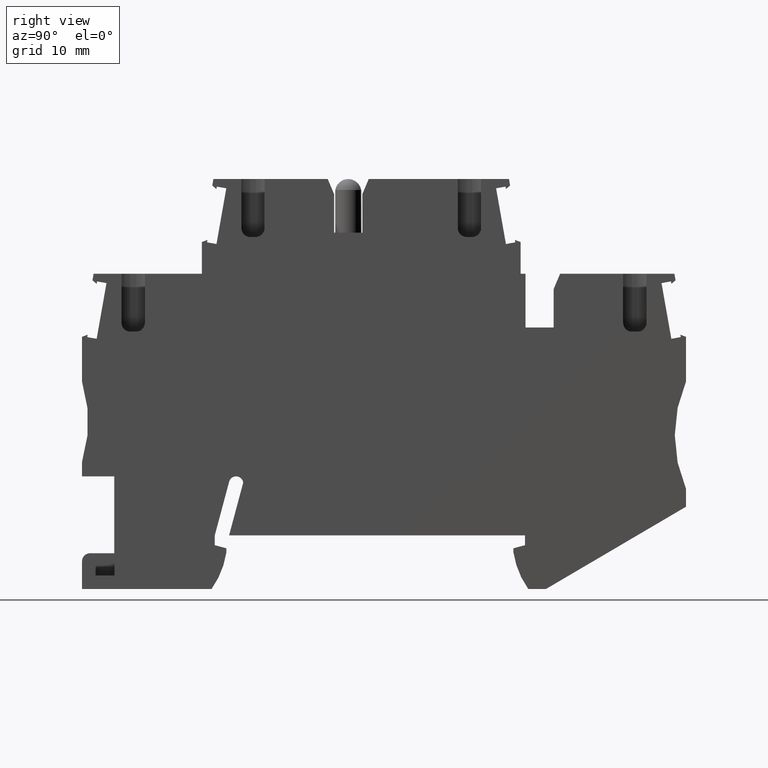
[diagram: clean part render]
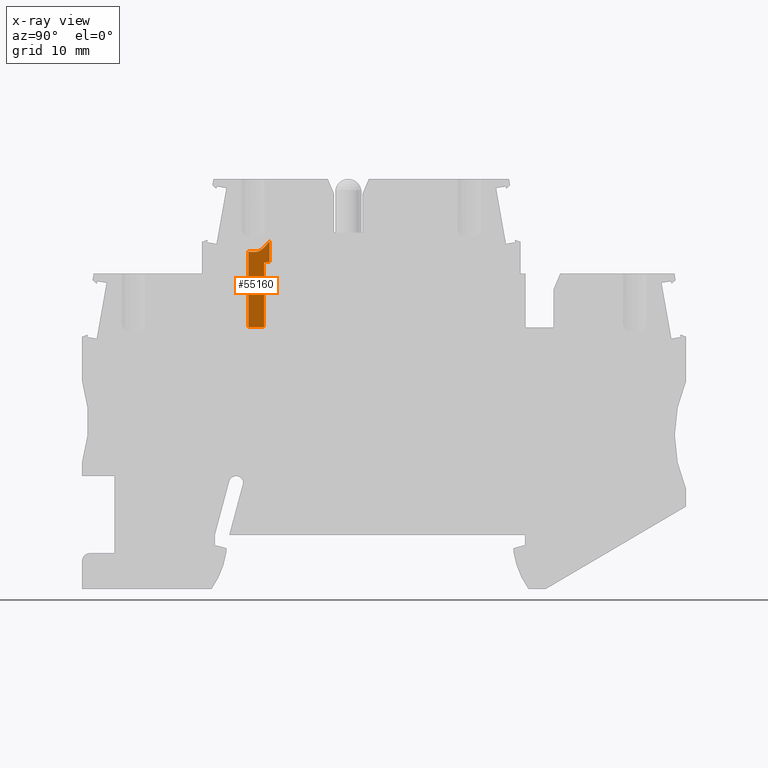
[diagram: x-ray — body ghosted, one internal face saturated and labeled with its STEP entity id]
A machine part, right view, then the same camera in x-ray: the body is ghosted and one INTERNAL B-rep face — a face not visible from any outside direction — is saturated and labeled: STEP entity #55160.
In plain terms, the highlighted planar face has unit normal (-1, 0, 0).
Its self-contained STEP definition (entity closure, byte-faithful):
#52170=CARTESIAN_POINT('',(154.743635451665,35.8467138221694,51.27));
#52180=DIRECTION('',(0.,1.,0.));
#52190=DIRECTION('',(-1.,0.,0.));
#52200=AXIS2_PLACEMENT_3D('',#52170,#52180,#52190);
#52210=CONICAL_SURFACE('',#52200,2.4,0.5235987755983);
#52910=CARTESIAN_POINT('',(154.743635451665,34.201265554979,52.72));
#52920=VERTEX_POINT('',#52910);
#52950=CARTESIAN_POINT('',(154.05289174731,33.1967138221691,52.72));
#52960=DIRECTION('',(1.15490950136632E-13,2.7755575615654E-17,-1.));
#52970=DIRECTION('',(1.,1.15504827924453E-13,1.15490950136632E-13));
#52980=AXIS2_PLACEMENT_3D('',#52950,#52960,#52970);
#52990=PLANE('',#52980);
#53000=CARTESIAN_POINT('',(156.293635451637,35.3660671728923,
52.7199999999989));
#53010=CARTESIAN_POINT('',(156.267840887076,35.3334404744596,
52.7199999999989));
#53020=CARTESIAN_POINT('',(156.241858629787,35.3009557849301,
52.7200000000002));
#53030=CARTESIAN_POINT('',(156.21566867898,35.2686388305721,
52.7200000000002));
#53040=CARTESIAN_POINT('',(156.189478723442,35.2363218703756,
52.7200000000002));
#53050=CARTESIAN_POINT('',(156.163081079205,35.2041725044098,
52.7200000000002));
#53060=CARTESIAN_POINT('',(156.13645095304,35.1722199252716,
52.7200000000002));
#53070=CARTESIAN_POINT('',(156.109820831326,35.140267351476,
52.7200000000002));
#53080=CARTESIAN_POINT('',(156.082958214025,35.1085113563377,
52.7199999999791));
#53090=CARTESIAN_POINT('',(156.055832548595,35.0769859532746,
52.7199999999791));
#53100=CARTESIAN_POINT('',(156.028706905784,35.0454605764999,
52.7199999999791));
#53110=CARTESIAN_POINT('',(156.001318168966,35.0141654874709,
52.7200000000001));
#53120=CARTESIAN_POINT('',(155.973628919315,34.9831415149089,
52.7200000000001));
#53130=CARTESIAN_POINT('',(155.945942386645,34.9521205865451,
52.7200000000001));
#53140=CARTESIAN_POINT('',(155.917945381304,34.9213591344507,
52.7199999999906));
#53150=CARTESIAN_POINT('',(155.889591800238,34.8909085420182,
52.7199999999906));
#53160=CARTESIAN_POINT('',(155.861239416109,34.8604592350484,
52.7199999999906));
#53170=CARTESIAN_POINT('',(155.832535522273,34.8303259742835,
52.7200000000002));
#53180=CARTESIAN_POINT('',(155.803436710618,34.8005853720769,
52.7200000000002));
#53190=CARTESIAN_POINT('',(155.774337921494,34.7708447928972,
52.7200000000002));
#53200=CARTESIAN_POINT('',(155.744843934553,34.741496014344,
52.7199999999815));
#53210=CARTESIAN_POINT('',(155.714896995998,34.7126294519162,
52.7199999999815));
#53220=CARTESIAN_POINT('',(155.68494877084,34.6837616493015,
52.7199999999815));
#53230=CARTESIAN_POINT('',(155.654553230631,34.6553804356319,
52.7200000000001));
#53240=CARTESIAN_POINT('',(155.623618312331,34.6275817854764,
52.7200000000001));
#53250=CARTESIAN_POINT('',(155.592677105817,34.599777484624,52.72));
#53260=CARTESIAN_POINT('',(155.56117225971,34.5725348281011,
52.7200000000001));
#53270=CARTESIAN_POINT('',(155.529055991043,34.5460405200699,
52.7200000000001));
#53280=CARTESIAN_POINT('',(155.512997730044,34.5327932615618,
52.7200000000001));
#53290=CARTESIAN_POINT('',(155.496786025457,34.5197332459089,
52.7200000000001));
#53300=CARTESIAN_POINT('',(155.480412318196,34.5068862120599,
52.7200000000001));
#53310=CARTESIAN_POINT('',(155.464038616359,34.4940391824668,
52.7200000000001));
#53320=CARTESIAN_POINT('',(155.447502841115,34.4814050403491,
52.71999999999));
#53330=CARTESIAN_POINT('',(155.43079474121,34.4690118586312,
52.71999999999));
#53340=CARTESIAN_POINT('',(155.414086659439,34.4566186903639,
52.71999999999));
#53350=CARTESIAN_POINT('',(155.397206150303,34.4444663655231,
52.7200000000001));
#53360=CARTESIAN_POINT('',(155.380141381193,34.4325859694163,
52.7200000000001));
#53370=CARTESIAN_POINT('',(155.363082827649,34.4207099005515,
52.7200000000001));
#53380=CARTESIAN_POINT('',(155.345817718255,34.4090896748287,
52.7199999999948));
#53390=CARTESIAN_POINT('',(155.328320889496,34.3977562824967,
52.7199999999948));
#53400=CARTESIAN_POINT('',(155.293332733918,34.3750930616571,
52.7199999999948));
#53410=CARTESIAN_POINT('',(155.257462933159,34.3536065855686,
52.7200000000001));
#53420=CARTESIAN_POINT('',(155.220756077048,34.3337344464469,
52.7200000000001));
#53430=CARTESIAN_POINT('',(155.184049104935,34.313862244525,
52.7200000000001));
#53440=CARTESIAN_POINT('',(155.146503163722,34.2956041821841,
52.7199999999969));
#53450=CARTESIAN_POINT('',(155.108155259222,34.2794104022862,
52.7199999999969));
#53460=CARTESIAN_POINT('',(155.088977927549,34.2713120852544,
52.7199999999969));
#53470=CARTESIAN_POINT('',(155.0696147083,34.2637354985101,
52.7200000000001));
#53480=CARTESIAN_POINT('',(155.050028256122,34.2567218892573,
52.7200000000001));
#53490=CARTESIAN_POINT('',(155.030431748524,34.2497046793119,
52.7200000000001));
#53500=CARTESIAN_POINT('',(155.010578055658,34.2432408802618,
52.7199999999995));
#53510=CARTESIAN_POINT('',(154.990517330726,34.2374088070545,
52.7199999999995));
#53520=CARTESIAN_POINT('',(154.97045669529,34.2315767598657,
52.7199999999995));
#53530=CARTESIAN_POINT('',(154.950190245535,34.226377132302,
52.7199999999995));
#53540=CARTESIAN_POINT('',(154.929776235345,34.2218750528661,
52.7199999999995));
#53550=CARTESIAN_POINT('',(154.909362183899,34.217372964332,
52.7199999999995));
#53560=CARTESIAN_POINT('',(154.888802384092,34.2135690676262,52.72));
#53570=CARTESIAN_POINT('',(154.868159374077,34.2105097622598,52.72));
#53580=CARTESIAN_POINT('',(154.826836432878,34.2043856797894,52.72));
#53590=CARTESIAN_POINT('',(154.785370200032,34.2012655549791,
52.7200000000001));
#53600=CARTESIAN_POINT('',(154.743635451665,34.2012655549791,52.72));
#53610=B_SPLINE_CURVE_WITH_KNOTS('',3,(#53000,#53010,#53020,#53030,
#53040,#53050,#53060,#53070,#53080,#53090,#53100,#53110,#53120,#53130,
#53140,#53150,#53160,#53170,#53180,#53190,#53200,#53210,#53220,#53230,
#53240,#53250,#53260,#53270,#53280,#53290,#53300,#53310,#53320,#53330,
#53340,#53350,#53360,#53370,#53380,#53390,#53400,#53410,#53420,#53430,
#53440,#53450,#53460,#53470,#53480,#53490,#53500,#53510,#53520,#53530,
#53540,#53550,#53560,#53570,#53580,#53590,#53600),.UNSPECIFIED.,.F.,.F.,
(4,3,3,3,3,3,3,3,3,3,3,3,3,3,3,3,3,3,3,3,4),(0.,0.124784969916189,
0.249573985058721,0.374350415398466,0.499108750004365,0.623887497258537,
0.748714454113742,0.873520853601216,0.998286597563892,1.12315986679428,
1.18560553521599,1.24802835868827,1.31042147406742,1.37286210593427,
1.49807013802907,1.62313897027712,1.68554509404166,1.74812110324174,
1.81082835357994,1.87349738781422,1.9984766633582),.UNSPECIFIED.);
#53620=SURFACE_CURVE('',#53610,(#52210,#52990),.CURVE_3D.);
#53630=CARTESIAN_POINT('',(156.293635451635,35.3660671728897,
52.7199999999986));
#53640=VERTEX_POINT('',#53630);
#53650=EDGE_CURVE('',#53640,#52920,#53620,.T.);
#54230=CARTESIAN_POINT('',(154.143635451695,34.201265554979,52.72));
#54240=VERTEX_POINT('',#54230);
#54270=CARTESIAN_POINT('',(168.644442103639,34.2012655549819,
52.7200000000017));
#54280=DIRECTION('',(-1.,-2.0003619345105E-13,-1.15490950136632E-13));
#54290=VECTOR('',#54280,1.);
#54300=LINE('',#54270,#54290);
#54310=EDGE_CURVE('',#52920,#54240,#54300,.T.);
#54440=CARTESIAN_POINT('',(154.052891747309,33.1967138221691,52.72));
#54450=DIRECTION('',(0.,0.,-1.));
#54460=DIRECTION('',(1.,0.,0.));
#54470=AXIS2_PLACEMENT_3D('',#54440,#54450,#54460);
#54480=PLANE('',#54470);
#54490=CARTESIAN_POINT('',(153.918635451665,6.54837765481162,52.72));
#54500=DIRECTION('',(-1.73472347596343E-15,-1.,-2.77555756158543E-17));
#54510=VECTOR('',#54500,1.);
#54520=LINE('',#54490,#54510);
#54530=CARTESIAN_POINT('',(153.918635451665,34.2313219349774,52.72));
#54540=VERTEX_POINT('',#54530);
#54550=CARTESIAN_POINT('',(153.918635451665,25.796713822153,52.72));
#54560=VERTEX_POINT('',#54550);
#54570=EDGE_CURVE('',#54540,#54560,#54520,.T.);
#54580=ORIENTED_EDGE('',*,*,#54570,.F.);
#54590=CARTESIAN_POINT('',(156.276411876206,25.796713822153,
52.7200000000002));
#54600=DIRECTION('',(1.,1.33538312406055E-26,1.15490950136632E-13));
#54610=VECTOR('',#54600,1.);
#54620=LINE('',#54590,#54610);
#54630=CARTESIAN_POINT('',(155.668635451674,25.796713822153,52.72));
#54640=VERTEX_POINT('',#54630);
#54650=EDGE_CURVE('',#54560,#54640,#54620,.T.);
#54660=ORIENTED_EDGE('',*,*,#54650,.F.);
#54670=CARTESIAN_POINT('',(155.668635451672,42.3467138221681,
52.7200000000002));
#54680=DIRECTION('',(1.12898795394119E-13,-1.,-2.77555756026152E-17));
#54690=VECTOR('',#54680,1.);
#54700=LINE('',#54670,#54690);
#54710=CARTESIAN_POINT('',(155.668635451673,32.9868019164953,
52.7200000000004));
#54720=VERTEX_POINT('',#54710);
#54730=EDGE_CURVE('',#54720,#54640,#54700,.T.);
#54740=ORIENTED_EDGE('',*,*,#54730,.T.);
#54750=CARTESIAN_POINT('',(157.5630530944,21.19491798499,52.72));
#54760=DIRECTION('',(0.,0.,-1.));
#54770=DIRECTION('',(-1.,0.,0.));
#54780=AXIS2_PLACEMENT_3D('',#54750,#54760,#54770);
#54790=CIRCLE('',#54780,11.9430877439282);
#54800=CARTESIAN_POINT('',(156.293635451664,33.0703516068616,52.72));
#54810=VERTEX_POINT('',#54800);
#54820=EDGE_CURVE('',#54720,#54810,#54790,.T.);
#54830=ORIENTED_EDGE('',*,*,#54820,.F.);
#54840=CARTESIAN_POINT('',(156.293635451664,2.99671382217021,52.72));
#54850=DIRECTION('',(0.,1.,0.));
#54860=VECTOR('',#54850,1.);
#54870=LINE('',#54840,#54860);
#54880=EDGE_CURVE('',#54810,#53640,#54870,.T.);
#54890=ORIENTED_EDGE('',*,*,#54880,.F.);
#54900=ORIENTED_EDGE('',*,*,#53650,.F.);
#54910=ORIENTED_EDGE('',*,*,#54310,.F.);
#54920=CARTESIAN_POINT('',(154.143635451665,35.8467138221694,51.27));
#54930=DIRECTION('',(-6.83720066269713E-15,1.,0.));
#54940=DIRECTION('',(-1.,0.,0.));
#54950=AXIS2_PLACEMENT_3D('',#54920,#54930,#54940);
#54960=CONICAL_SURFACE('',#54950,2.4,0.5235987755983);
#54970=CARTESIAN_POINT('',(154.143635451695,34.2012655549789,52.72));
#54980=CARTESIAN_POINT('',(154.124648812186,34.2012655549783,52.72));
#54990=CARTESIAN_POINT('',(154.105637455716,34.2019131624429,52.72));
#55000=CARTESIAN_POINT('',(154.08666475624,34.203203306834,52.72));
#55010=CARTESIAN_POINT('',(154.067692068054,34.2044934504573,52.72));
#55020=CARTESIAN_POINT('',(154.048759983927,34.2064259272555,
52.7199999999999));
#55030=CARTESIAN_POINT('',(154.029930430801,34.2089755802255,
52.7199999999999));
#55040=CARTESIAN_POINT('',(154.011100754083,34.2115252499308,
52.7199999999999));
#55050=CARTESIAN_POINT('',(153.992375268899,34.2146916467289,
52.7199999999999));
#55060=CARTESIAN_POINT('',(153.973809078361,34.2184324261152,
52.7199999999999));
#55070=CARTESIAN_POINT('',(153.955242636854,34.2221732560676,
52.7199999999999));
#55080=CARTESIAN_POINT('',(153.936836723484,34.2264878947609,52.72));
#55090=CARTESIAN_POINT('',(153.918635451665,34.2313219349774,52.72));
#55100=B_SPLINE_CURVE_WITH_KNOTS('',3,(#54970,#54980,#54990,#55000,
#55010,#55020,#55030,#55040,#55050,#55060,#55070,#55080,#55090),
.UNSPECIFIED.,.F.,.F.,(4,3,3,3,4),(0.,0.057014590886809,
0.114052372410785,0.170974705670435,0.227642657630701),.UNSPECIFIED.);
#55110=SURFACE_CURVE('',#55100,(#54960,#52990),.CURVE_3D.);
#55120=EDGE_CURVE('',#54240,#54540,#55110,.T.);
#55130=ORIENTED_EDGE('',*,*,#55120,.F.);
#55140=EDGE_LOOP('',(#55130,#54910,#54900,#54890,#54830,#54740,#54660,
#54580));
#55150=FACE_OUTER_BOUND('',#55140,.T.);
#55160=ADVANCED_FACE('',(#55150),#54480,.T.);